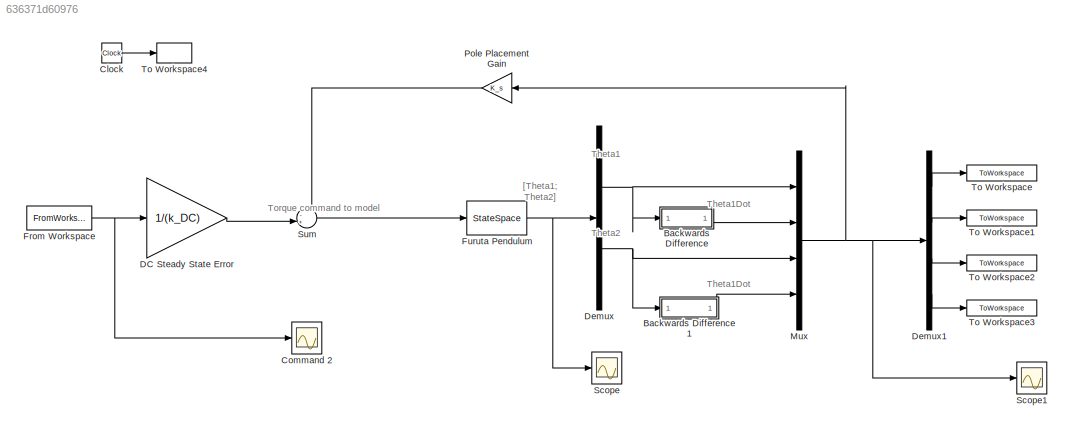
MODEL slx_636371d60976
KIND model
CONFIG AbsTol = auto
CONFIG EnableMultiTasking = off
CONFIG FixedStep = auto
CONFIG MaxStep = auto
CONFIG MinStep = auto
CONFIG RelTol = 1e-3
CONFIG SampleTimeConstraint = Unconstrained
CONFIG Solver = VariableStepAuto
CONFIG SolverName = VariableStepAuto
CONFIG StartTime = 0.0
CONFIG StopTime = 10.0
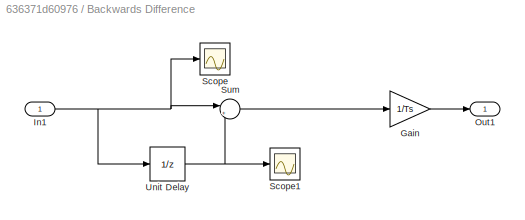
BLOCK [SubSystem] Backwards Difference 
  Ports = [1, 1]
  RequestExecContextInheritance = off
BLOCK [Gain] Backwards Difference /Gain
  Gain = 1/Ts
  OutDataTypeStr = Inherit: Inherit via internal rule
  ParamDataTypeStr = Inherit: Inherit via internal rule
  SaturateOnIntegerOverflow = off
BLOCK [Inport] Backwards Difference /In1
  IconDisplay = Port number
BLOCK [Outport] Backwards Difference /Out1
  IconDisplay = Port number
BLOCK [Scope] Backwards Difference /Scope
  Floating = off
  NumInputPorts = 1
  Ports = [1]
  ScopeSpecificationString = Simulink.scopes.TimeScopeBlockCfg('CurrentConfiguration', extmgr.ConfigurationSet(extmgr.Configuration('Core','General UI',true),extmgr.Configuration('Core','Source UI',true),extmgr.Configuration('Sources','WiredSimulink',true,'DataLoggingVariableName','ScopeData2'),extmgr.Configuration('Visuals','Time Domain',true,'SerializedDisplays',{struct('MinYLimReal','-0.40578','MaxYLimReal','0.91775','YLab...<+1391ch>
BLOCK [Scope] Backwards Difference /Scope1
  Floating = off
  NumInputPorts = 1
  Ports = [1]
  ScopeSpecificationString = Simulink.scopes.TimeScopeBlockCfg('CurrentConfiguration', extmgr.ConfigurationSet(extmgr.Configuration('Core','General UI',true),extmgr.Configuration('Core','Source UI',true),extmgr.Configuration('Sources','WiredSimulink',true,'DataLoggingVariableName','ScopeData4'),extmgr.Configuration('Visuals','Time Domain',true,'SerializedDisplays',{struct('MinYLimReal','-0.40578','MaxYLimReal','0.91775','YLab...<+1398ch>
BLOCK [Sum] Backwards Difference /Sum
  IconShape = round
  InputSameDT = off
  Inputs = |+-
  OutDataTypeStr = Inherit: Inherit via internal rule
  Ports = [2, 1]
  SaturateOnIntegerOverflow = off
BLOCK [UnitDelay] Backwards Difference /Unit Delay
  InputProcessing = Elements as channels (sample based)
  SampleTime = Ts
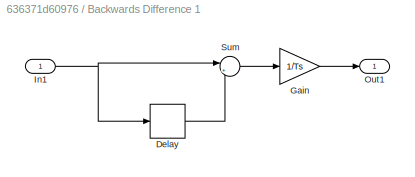
BLOCK [SubSystem] Backwards Difference 1
  Ports = [1, 1]
  RequestExecContextInheritance = off
BLOCK [Delay] Backwards Difference 1/Delay
  DelayLength = 1
  InputPortMap = u0
  Ports = [1, 1]
BLOCK [Gain] Backwards Difference 1/Gain
  Gain = 1/Ts
  OutDataTypeStr = Inherit: Inherit via internal rule
  ParamDataTypeStr = Inherit: Inherit via internal rule
  SaturateOnIntegerOverflow = off
BLOCK [Inport] Backwards Difference 1/In1
  IconDisplay = Port number
BLOCK [Outport] Backwards Difference 1/Out1
  IconDisplay = Port number
BLOCK [Sum] Backwards Difference 1/Sum
  IconShape = round
  InputSameDT = off
  Inputs = |+-
  OutDataTypeStr = Inherit: Inherit via internal rule
  Ports = [2, 1]
  SaturateOnIntegerOverflow = off
BLOCK [Clock] Clock
BLOCK [Scope] Command 2
  Floating = off
  NumInputPorts = 1
  Ports = [1]
  ScopeSpecificationString = Simulink.scopes.TimeScopeBlockCfg('CurrentConfiguration', extmgr.ConfigurationSet(extmgr.Configuration('Core','General UI',true),extmgr.Configuration('Core','Source UI',true),extmgr.Configuration('Sources','WiredSimulink',true,'DataLoggingSaveFormat','StructureWithTime','DataLoggingDecimation','1','DataLoggingDecimateData',true,'DataLoggingVariableName','ScopeData3'),extmgr.Configuration('Visuals'...<+1686ch>
BLOCK [Gain] DC Steady State Error
  Gain = 1/(k_DC)
  Multiplication = Matrix(K*u)
  OutDataTypeStr = Inherit: Inherit via internal rule
  ParamDataTypeStr = Inherit: Inherit via internal rule
  SaturateOnIntegerOverflow = off
BLOCK [Demux] Demux
  DisplayOption = bar
  Outputs = 2
  Ports = [1, 2]
BLOCK [Demux] Demux1
  DisplayOption = bar
  Ports = [1, 4]
BLOCK [FromWorkspace] From Workspace
  SampleTime = 0
  VariableName = desiredTheta1
  ZeroCross = on
BLOCK [StateSpace] Furuta Pendulum
  A = Ac
  B = Bc
  C = Cc
  ContinuousStateAttributes = 'Theta'
  D = Dc
  InitialCondition = [0; 0; 0.05; 0]
  Ports = [1, 1]
BLOCK [Mux] Mux
  DisplayOption = bar
  Ports = [4, 1]
BLOCK [Gain] Pole Placement Gain
  Gain = K_s
  Multiplication = Matrix(K*u)
  OutDataTypeStr = Inherit: Inherit via internal rule
  ParamDataTypeStr = Inherit: Inherit via internal rule
  SaturateOnIntegerOverflow = off
BLOCK [Scope] Scope
  Floating = off
  NumInputPorts = 1
  Ports = [1]
  ScopeSpecificationString = Simulink.scopes.TimeScopeBlockCfg('CurrentConfiguration', extmgr.ConfigurationSet(extmgr.Configuration('Core','General UI',true),extmgr.Configuration('Core','Source UI',true),extmgr.Configuration('Sources','WiredSimulink',true),extmgr.Configuration('Visuals','Time Domain',true,'SerializedDisplays',{struct('MinYLimReal','-0.40578','MaxYLimReal','0.91775','YLabelReal','','MinYLimMag','0.00000','MaxY...<+1357ch>
BLOCK [Scope] Scope1
  Floating = off
  NumInputPorts = 1
  Ports = [1]
  ScopeSpecificationString = Simulink.scopes.TimeScopeBlockCfg('CurrentConfiguration', extmgr.ConfigurationSet(extmgr.Configuration('Core','General UI',true),extmgr.Configuration('Core','Source UI',true),extmgr.Configuration('Sources','WiredSimulink',true,'DataLoggingVariableName','ScopeData1'),extmgr.Configuration('Visuals','Time Domain',true,'SerializedDisplays',{struct('MinYLimReal','-9.85331','MaxYLimReal','14.31369','YLa...<+1429ch>
BLOCK [Sum] Sum
  IconShape = round
  InputSameDT = off
  Inputs = -+|
  OutDataTypeStr = Inherit: Inherit via internal rule
  Ports = [2, 1]
  SaturateOnIntegerOverflow = off
BLOCK [ToWorkspace] To Workspace
  FixptAsFi = on
  MaxDataPoints = inf
  Ports = [1]
  SampleTime = -1
  Save2DSignal = 3-D array (concatenate along third dimension)
  VariableName = Theta1
BLOCK [ToWorkspace] To Workspace1
  FixptAsFi = on
  MaxDataPoints = inf
  Ports = [1]
  SampleTime = -1
  Save2DSignal = 3-D array (concatenate along third dimension)
  VariableName = Theta1Dot
BLOCK [ToWorkspace] To Workspace2
  FixptAsFi = on
  MaxDataPoints = inf
  Ports = [1]
  SampleTime = -1
  Save2DSignal = 3-D array (concatenate along third dimension)
  VariableName = Theta2
BLOCK [ToWorkspace] To Workspace3
  FixptAsFi = on
  MaxDataPoints = inf
  Ports = [1]
  SampleTime = -1
  Save2DSignal = 3-D array (concatenate along third dimension)
  VariableName = Theta2Dot
BLOCK [ToWorkspace] To Workspace4
  FixptAsFi = on
  MaxDataPoints = inf
  Ports = [1]
  SampleTime = -1
  Save2DSignal = 2-D array (concatenate along first dimension)
  VariableName = t
ANNOTATION (root): Theta1
ANNOTATION (root): Theta1Dot
ANNOTATION (root): Theta2
ANNOTATION (root): Torque command to model
ANNOTATION (root): [Theta1; Theta2]
LINE Backwards Difference /Gain:1 -> Backwards Difference /Out1:1
NET Backwards Difference /In1:1 -> Backwards Difference /Scope:1, Backwards Difference /Sum:1, Backwards Difference /Unit Delay:1
LINE Backwards Difference /Sum:1 -> Backwards Difference /Gain:1
NET Backwards Difference /Unit Delay:1 -> Backwards Difference /Scope1:1, Backwards Difference /Sum:2
LINE Backwards Difference 1/Delay:1 -> Backwards Difference 1/Sum:2
LINE Backwards Difference 1/Gain:1 -> Backwards Difference 1/Out1:1
NET Backwards Difference 1/In1:1 -> Backwards Difference 1/Delay:1, Backwards Difference 1/Sum:1
LINE Backwards Difference 1/Sum:1 -> Backwards Difference 1/Gain:1
LINE Backwards Difference 1:1 -> Mux:4
LINE Backwards Difference :1 -> Mux:2
LINE Clock:1 -> To Workspace4:1
LINE DC Steady State Error:1 -> Sum:2
LINE Demux1:1 -> To Workspace:1
LINE Demux1:2 -> To Workspace1:1
LINE Demux1:3 -> To Workspace2:1
LINE Demux1:4 -> To Workspace3:1
NET Demux:1 -> Backwards Difference :1, Mux:1
NET Demux:2 -> Backwards Difference 1:1, Mux:3
NET From Workspace:1 -> Command 2:1, DC Steady State Error:1
NET Furuta Pendulum:1 -> Demux:1, Scope:1
NET Mux:1 -> Demux1:1, Pole Placement Gain:1, Scope1:1
LINE Pole Placement Gain:1 -> Sum:1
LINE Sum:1 -> Furuta Pendulum:1
note: NET lines group one-source signal fan-out (src -> all destinations, sorted); 1:1 wires keep LINE
